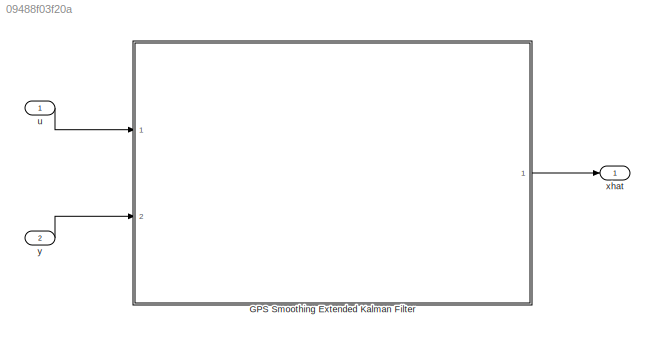
MODEL slx_09488f03f20a
KIND model
CONFIG AbsTol = auto
CONFIG EnableMultiTasking = off
CONFIG FixedStep = auto
CONFIG MaxStep = auto
CONFIG MinStep = auto
CONFIG RelTol = 1e-3
CONFIG SampleTimeConstraint = Unconstrained
CONFIG Solver = VariableStepAuto
CONFIG SolverName = VariableStepAuto
CONFIG StartTime = 0.0
CONFIG StopTime = 10.0
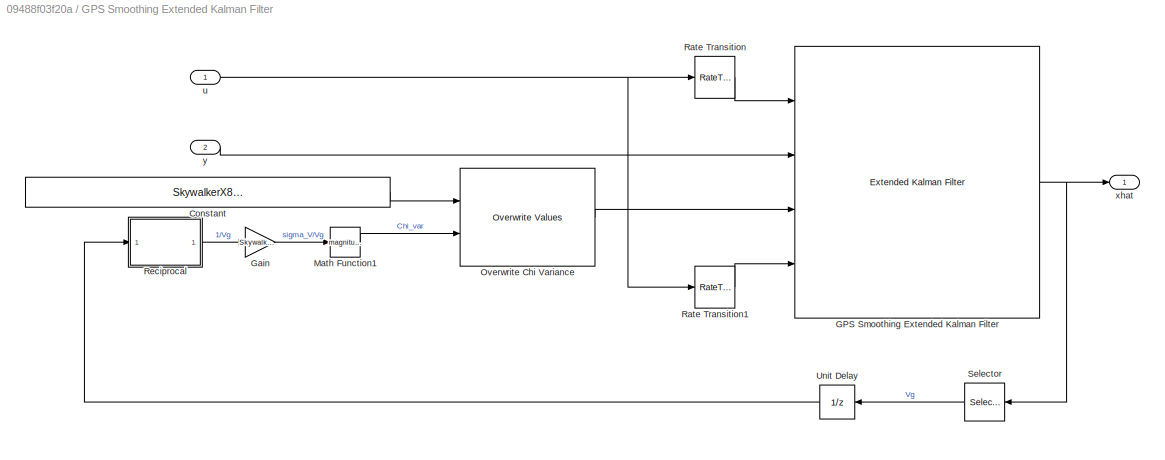
BLOCK [SubSystem] GPS Smoothing Extended Kalman Filter
  Ports = [2, 1]
  RequestExecContextInheritance = off
BLOCK [Constant] GPS Smoothing Extended Kalman Filter/Constant
  Value = SkywalkerX8.Sensors.EKF.GPSSmoothing.MeasurementCovarianceMatrix
BLOCK [Reference] GPS Smoothing Extended Kalman Filter/GPS Smoothing Extended Kalman Filter  REF=sharedTrackingLibrary/Extended Kalman Filter
  Ports = [4, 1]
  SourceBlock = sharedTrackingLibrary/Extended Kalman Filter
  SourceProductBaseCode = CT
  SourceProductName = Control System Toolbox
  SourceType = Extended Kalman Filter
BLOCK [Gain] GPS Smoothing Extended Kalman Filter/Gain
  Gain = SkywalkerX8.Sensors.GPS.Velocity.StdDev
  OutDataTypeStr = Inherit: Inherit via internal rule
  ParamDataTypeStr = Inherit: Inherit via internal rule
  SaturateOnIntegerOverflow = off
BLOCK [Math] GPS Smoothing Extended Kalman Filter/Math Function1
  Operator = magnitude^2
  Ports = [1, 1]
BLOCK [Reference] GPS Smoothing Extended Kalman Filter/Overwrite Chi Variance  REF=dspmtrx3/Overwrite Values
  Ports = [2, 1]
  SourceBlock = dspmtrx3/Overwrite Values
  SourceProductBaseCode = DS
  SourceProductName = DSP System Toolbox
  SourceType = Overwrite Values
BLOCK [RateTransition] GPS Smoothing Extended Kalman Filter/Rate Transition
  OutPortSampleTime = SkywalkerX8.Sensors.EKF.GPSSmoothing.StateTransitionSampleTime
BLOCK [RateTransition] GPS Smoothing Extended Kalman Filter/Rate Transition1
  OutPortSampleTime = SkywalkerX8.Sensors.EKF.GPSSmoothing.MeasurementSampleTime
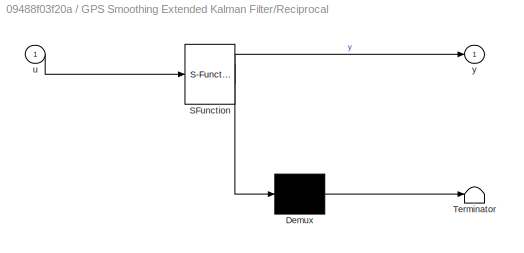
BLOCK [SubSystem] GPS Smoothing Extended Kalman Filter/Reciprocal
  ErrorFcn = Stateflow.Translate.translate
  PermitHierarchicalResolution = ExplicitOnly
  Ports = [1, 1]
  RequestExecContextInheritance = off
  SFBlockType = MATLAB Function
  TreatAsAtomicUnit = on
BLOCK [Demux] GPS Smoothing Extended Kalman Filter/Reciprocal/ Demux 
  Outputs = 1
  Ports = [1, 1]
BLOCK [S-Function] GPS Smoothing Extended Kalman Filter/Reciprocal/ SFunction 
  EnableBusSupport = on
  FunctionName = sf_sfun
  PortCounts = [1 2]
  Ports = [1, 2]
  SFcnIsStateOwnerBlock = off
  SFunctionDeploymentMode = off
  Tag = Stateflow S-Function GPSSmoothingEstimation 2
BLOCK [Terminator] GPS Smoothing Extended Kalman Filter/Reciprocal/ Terminator 
BLOCK [Inport] GPS Smoothing Extended Kalman Filter/Reciprocal/u
  IconDisplay = Port number
BLOCK [Outport] GPS Smoothing Extended Kalman Filter/Reciprocal/y
  IconDisplay = Port number
BLOCK [Selector] GPS Smoothing Extended Kalman Filter/Selector
  IndexOptions = Index vector (dialog)
  Indices = 3
  InputPortWidth = 7
  OutputSizes = 1
  Ports = [1, 1]
BLOCK [UnitDelay] GPS Smoothing Extended Kalman Filter/Unit Delay
  InitialCondition = SkywalkerX8.Sensors.EKF.GPSSmoothing.InitialState(3)
  InputProcessing = Elements as channels (sample based)
  SampleTime = SkywalkerX8.Sensors.EKF.GPSSmoothing.MeasurementSampleTime
BLOCK [Inport] GPS Smoothing Extended Kalman Filter/u
  IconDisplay = Port number
  PortDimensions = 5
BLOCK [Outport] GPS Smoothing Extended Kalman Filter/xhat
  IconDisplay = Port number
BLOCK [Inport] GPS Smoothing Extended Kalman Filter/y
  IconDisplay = Port number
  Port = 2
  PortDimensions = 6
BLOCK [Inport] u
  IconDisplay = Port number
  PortDimensions = 5
  SampleTime = SkywalkerX8.Sensors.EKF.GPSSmoothing.StateTransitionSampleTime
BLOCK [Outport] xhat
  IconDisplay = Port number
BLOCK [Inport] y
  IconDisplay = Port number
  Port = 2
  PortDimensions = 6
  SampleTime = SkywalkerX8.Sensors.EKF.GPSSmoothing.MeasurementSampleTime
LINE GPS Smoothing Extended Kalman Filter/Constant:1 -> GPS Smoothing Extended Kalman Filter/Overwrite Chi Variance:1
NET GPS Smoothing Extended Kalman Filter/GPS Smoothing Extended Kalman Filter:1 -> GPS Smoothing Extended Kalman Filter/Selector:1, GPS Smoothing Extended Kalman Filter/xhat:1
LINE GPS Smoothing Extended Kalman Filter/Gain:1 -> GPS Smoothing Extended Kalman Filter/Math Function1:1
LINE GPS Smoothing Extended Kalman Filter/Math Function1:1 -> GPS Smoothing Extended Kalman Filter/Overwrite Chi Variance:2
LINE GPS Smoothing Extended Kalman Filter/Overwrite Chi Variance:1 -> GPS Smoothing Extended Kalman Filter/GPS Smoothing Extended Kalman Filter:3
LINE GPS Smoothing Extended Kalman Filter/Rate Transition1:1 -> GPS Smoothing Extended Kalman Filter/GPS Smoothing Extended Kalman Filter:4
LINE GPS Smoothing Extended Kalman Filter/Rate Transition:1 -> GPS Smoothing Extended Kalman Filter/GPS Smoothing Extended Kalman Filter:1
LINE GPS Smoothing Extended Kalman Filter/Reciprocal:1 -> GPS Smoothing Extended Kalman Filter/Gain:1
LINE GPS Smoothing Extended Kalman Filter/Selector:1 -> GPS Smoothing Extended Kalman Filter/Unit Delay:1
LINE GPS Smoothing Extended Kalman Filter/Unit Delay:1 -> GPS Smoothing Extended Kalman Filter/Reciprocal:1
NET GPS Smoothing Extended Kalman Filter/u:1 -> GPS Smoothing Extended Kalman Filter/Rate Transition1:1, GPS Smoothing Extended Kalman Filter/Rate Transition:1
LINE GPS Smoothing Extended Kalman Filter/y:1 -> GPS Smoothing Extended Kalman Filter/GPS Smoothing Extended Kalman Filter:2
LINE GPS Smoothing Extended Kalman Filter:1 -> xhat:1
LINE u:1 -> GPS Smoothing Extended Kalman Filter:1
LINE y:1 -> GPS Smoothing Extended Kalman Filter:2
note: NET lines group one-source signal fan-out (src -> all destinations, sorted); 1:1 wires keep LINE
CHART GPS Smoothing
Extended Kalman Filter/Reciprocal states=1 transitions=1
  STATE_LABEL 'eML_blk_kernel()'
  STATE_LABEL 'SCRIPT:\nfunction y = reciprocal(u)\n\n    if (u ~= 0)\n       y = 1/u;\n    else\n       y = 1E06; \n    end\n\nend'
